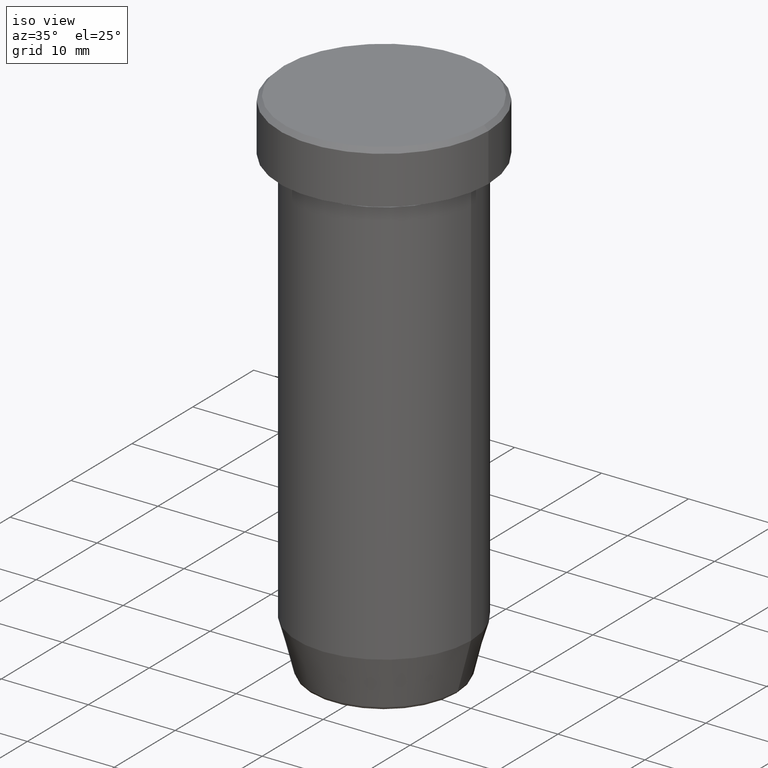
[diagram: clean part render]
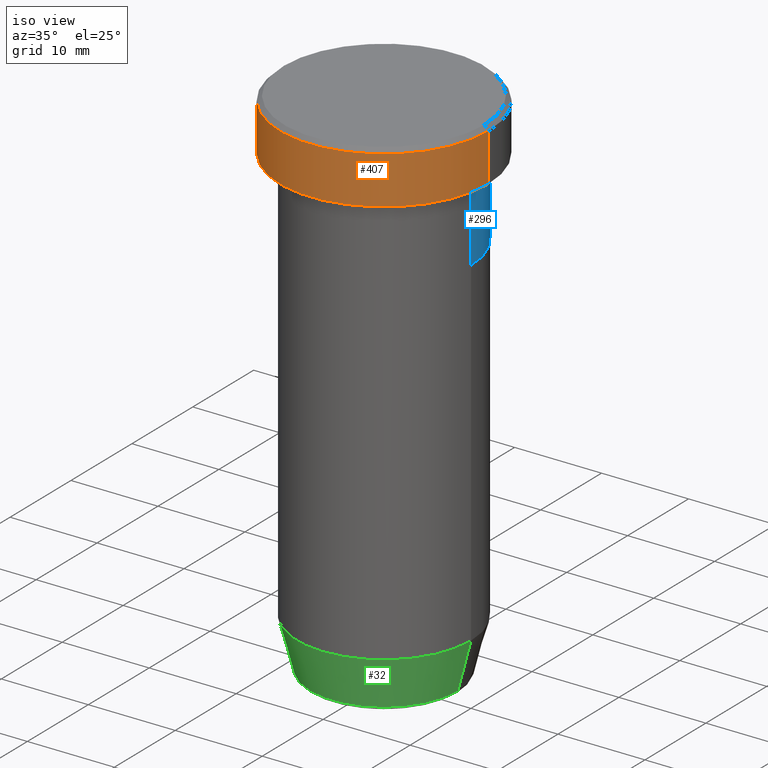
[diagram: same view with three faces highlighted in distinct colors, each labeled with its STEP entity id]
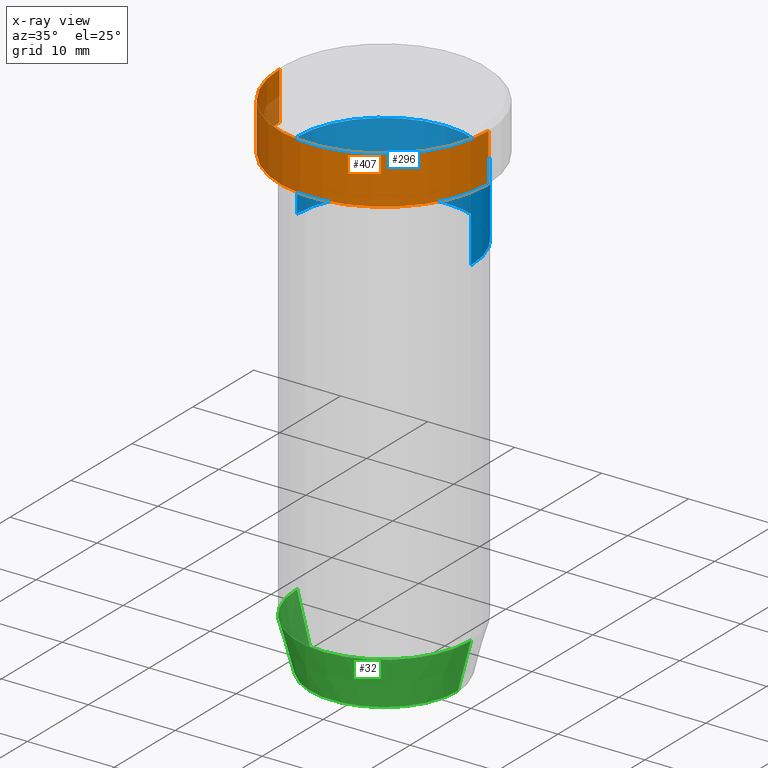
[diagram: x-ray of the same camera — body ghosted, the three highlighted faces saturated]
A machine part, iso view with three faces highlighted in distinct colors.
The next image is the same camera in x-ray (body ghosted, the three faces saturated) — at least one of them is partly hidden behind the body in this view.
Their STEP definitions:

[orange] entity #407 — the highlighted cylindrical surface (partial cylindrical patch) has radius 12 mm, axis along (-0, -0, 1).
#16 = CIRCLE ( 'NONE', #301, 12.00000000000000000 ) ;
#21 = ORIENTED_EDGE ( 'NONE', *, *, #281, .T. ) ;
#23 = ORIENTED_EDGE ( 'NONE', *, *, #138, .T. ) ;
#44 = CIRCLE ( 'NONE', #217, 12.00000000000000000 ) ;
#66 = DIRECTION ( 'NONE',  ( -0.000000000000000000, -0.000000000000000000, 1.000000000000000000 ) ) ;
#92 = DIRECTION ( 'NONE',  ( 1.000000000000000000, 0.000000000000000000, 0.000000000000000000 ) ) ;
#106 = FACE_OUTER_BOUND ( 'NONE', #595, .T. ) ;
#115 = VERTEX_POINT ( 'NONE', #263 ) ;
#138 = EDGE_CURVE ( 'NONE', #115, #331, #16, .T. ) ;
#143 = EDGE_CURVE ( 'NONE', #576, #115, #499, .T. ) ;
#145 = LINE ( 'NONE', #378, #516 ) ;
#153 = DIRECTION ( 'NONE',  ( 1.000000000000000000, 0.000000000000000000, 0.000000000000000000 ) ) ;
#217 = AXIS2_PLACEMENT_3D ( 'NONE', #248, #387, #568 ) ;
#229 = VERTEX_POINT ( 'NONE', #458 ) ;
#234 = EDGE_CURVE ( 'NONE', #229, #331, #145, .T. ) ;
#247 = ORIENTED_EDGE ( 'NONE', *, *, #143, .T. ) ;
#248 = CARTESIAN_POINT ( 'NONE',  ( 0.000000000000000000, 0.000000000000000000, -5.999999999999999112 ) ) ;
#263 = CARTESIAN_POINT ( 'NONE',  ( 12.00000000000000000, 0.000000000000000000, -0.5000000000000091038 ) ) ;
#281 = EDGE_CURVE ( 'NONE', #229, #576, #44, .T. ) ;
#301 = AXIS2_PLACEMENT_3D ( 'NONE', #581, #404, #92 ) ;
#331 = VERTEX_POINT ( 'NONE', #574 ) ;
#364 = VECTOR ( 'NONE', #449, 1000.000000000000000 ) ;
#371 = DIRECTION ( 'NONE',  ( -0.000000000000000000, -0.000000000000000000, 1.000000000000000000 ) ) ;
#378 = CARTESIAN_POINT ( 'NONE',  ( -12.00000000000000000, 1.469576158976823947E-15, 0.000000000000000000 ) ) ;
#387 = DIRECTION ( 'NONE',  ( -0.000000000000000000, -0.000000000000000000, 1.000000000000000000 ) ) ;
#404 = DIRECTION ( 'NONE',  ( 0.000000000000000000, 0.000000000000000000, -1.000000000000000000 ) ) ;
#405 = ORIENTED_EDGE ( 'NONE', *, *, #234, .F. ) ;
#407 = ADVANCED_FACE ( 'NONE', ( #106 ), #592, .T. ) ;
#409 = AXIS2_PLACEMENT_3D ( 'NONE', #468, #66, #153 ) ;
#447 = CARTESIAN_POINT ( 'NONE',  ( 12.00000000000000000, 0.000000000000000000, -5.999999999999999112 ) ) ;
#449 = DIRECTION ( 'NONE',  ( -0.000000000000000000, -0.000000000000000000, 1.000000000000000000 ) ) ;
#458 = CARTESIAN_POINT ( 'NONE',  ( -12.00000000000000000, 1.469576158976823947E-15, -5.999999999999999112 ) ) ;
#468 = CARTESIAN_POINT ( 'NONE',  ( 0.000000000000000000, 0.000000000000000000, 0.000000000000000000 ) ) ;
#499 = LINE ( 'NONE', #593, #364 ) ;
#516 = VECTOR ( 'NONE', #371, 1000.000000000000000 ) ;
#568 = DIRECTION ( 'NONE',  ( 1.000000000000000000, 0.000000000000000000, 0.000000000000000000 ) ) ;
#574 = CARTESIAN_POINT ( 'NONE',  ( -12.00000000000000000, 1.469576158976823947E-15, -0.5000000000000091038 ) ) ;
#576 = VERTEX_POINT ( 'NONE', #447 ) ;
#581 = CARTESIAN_POINT ( 'NONE',  ( 0.000000000000000000, 0.000000000000000000, -0.5000000000000091038 ) ) ;
#592 = CYLINDRICAL_SURFACE ( 'NONE', #409, 12.00000000000000000 ) ;
#593 = CARTESIAN_POINT ( 'NONE',  ( 12.00000000000000000, 0.000000000000000000, 0.000000000000000000 ) ) ;
#595 = EDGE_LOOP ( 'NONE', ( #405, #21, #247, #23 ) ) ;

[blue] entity #296 — the highlighted cylindrical surface (partial cylindrical patch) has radius 10 mm, axis along (-0, -0, 1).
#7 = CARTESIAN_POINT ( 'NONE',  ( -10.00000000000000000, 1.224646799147353256E-15, 0.000000000000000000 ) ) ;
#29 = VERTEX_POINT ( 'NONE', #214 ) ;
#54 = CARTESIAN_POINT ( 'NONE',  ( 0.000000000000000000, 0.000000000000000000, -6.999999999999999112 ) ) ;
#55 = ORIENTED_EDGE ( 'NONE', *, *, #83, .F. ) ;
#57 = DIRECTION ( 'NONE',  ( 1.000000000000000000, 0.000000000000000000, 0.000000000000000000 ) ) ;
#59 = CARTESIAN_POINT ( 'NONE',  ( 10.00000000000000000, 0.000000000000000000, -15.00000000000000000 ) ) ;
#78 = FACE_OUTER_BOUND ( 'NONE', #373, .T. ) ;
#79 = EDGE_CURVE ( 'NONE', #134, #29, #194, .T. ) ;
#83 = EDGE_CURVE ( 'NONE', #204, #134, #400, .T. ) ;
#100 = DIRECTION ( 'NONE',  ( 1.000000000000000000, 0.000000000000000000, 0.000000000000000000 ) ) ;
#105 = CIRCLE ( 'NONE', #492, 10.00000000000000000 ) ;
#124 = ORIENTED_EDGE ( 'NONE', *, *, #403, .T. ) ;
#134 = VERTEX_POINT ( 'NONE', #171 ) ;
#149 = DIRECTION ( 'NONE',  ( -0.000000000000000000, -0.000000000000000000, 1.000000000000000000 ) ) ;
#157 = ORIENTED_EDGE ( 'NONE', *, *, #79, .F. ) ;
#171 = CARTESIAN_POINT ( 'NONE',  ( 10.00000000000000000, 0.000000000000000000, -6.999999999999999112 ) ) ;
#194 = CIRCLE ( 'NONE', #264, 10.00000000000000000 ) ;
#204 = VERTEX_POINT ( 'NONE', #59 ) ;
#207 = EDGE_CURVE ( 'NONE', #338, #29, #413, .T. ) ;
#214 = CARTESIAN_POINT ( 'NONE',  ( -10.00000000000000000, 1.224646799147353256E-15, -6.999999999999999112 ) ) ;
#237 = VECTOR ( 'NONE', #258, 1000.000000000000000 ) ;
#242 = CYLINDRICAL_SURFACE ( 'NONE', #340, 10.00000000000000000 ) ;
#258 = DIRECTION ( 'NONE',  ( -0.000000000000000000, -0.000000000000000000, 1.000000000000000000 ) ) ;
#264 = AXIS2_PLACEMENT_3D ( 'NONE', #54, #302, #100 ) ;
#296 = ADVANCED_FACE ( 'NONE', ( #78 ), #242, .T. ) ;
#302 = DIRECTION ( 'NONE',  ( -0.000000000000000000, -0.000000000000000000, 1.000000000000000000 ) ) ;
#337 = CARTESIAN_POINT ( 'NONE',  ( -10.00000000000000000, 1.224646799147353256E-15, -15.00000000000000000 ) ) ;
#338 = VERTEX_POINT ( 'NONE', #337 ) ;
#340 = AXIS2_PLACEMENT_3D ( 'NONE', #437, #577, #520 ) ;
#373 = EDGE_LOOP ( 'NONE', ( #124, #386, #157, #55 ) ) ;
#386 = ORIENTED_EDGE ( 'NONE', *, *, #207, .T. ) ;
#400 = LINE ( 'NONE', #496, #237 ) ;
#403 = EDGE_CURVE ( 'NONE', #204, #338, #105, .T. ) ;
#413 = LINE ( 'NONE', #7, #464 ) ;
#437 = CARTESIAN_POINT ( 'NONE',  ( 0.000000000000000000, 0.000000000000000000, 0.000000000000000000 ) ) ;
#464 = VECTOR ( 'NONE', #466, 1000.000000000000000 ) ;
#466 = DIRECTION ( 'NONE',  ( -0.000000000000000000, -0.000000000000000000, 1.000000000000000000 ) ) ;
#492 = AXIS2_PLACEMENT_3D ( 'NONE', #551, #149, #57 ) ;
#496 = CARTESIAN_POINT ( 'NONE',  ( 10.00000000000000000, 0.000000000000000000, 0.000000000000000000 ) ) ;
#520 = DIRECTION ( 'NONE',  ( 1.000000000000000000, 0.000000000000000000, 0.000000000000000000 ) ) ;
#551 = CARTESIAN_POINT ( 'NONE',  ( 0.000000000000000000, 0.000000000000000000, -15.00000000000000000 ) ) ;
#577 = DIRECTION ( 'NONE',  ( -0.000000000000000000, -0.000000000000000000, 1.000000000000000000 ) ) ;

[green] entity #32 — the highlighted conical surface has half-angle 15 deg.
#1 = DIRECTION ( 'NONE',  ( -1.000000000000000000, 0.000000000000000000, 0.000000000000000000 ) ) ;
#9 = DIRECTION ( 'NONE',  ( -0.000000000000000000, -0.000000000000000000, 1.000000000000000000 ) ) ;
#25 = ORIENTED_EDGE ( 'NONE', *, *, #199, .T. ) ;
#32 = ADVANCED_FACE ( 'NONE', ( #166 ), #313, .T. ) ;
#52 = DIRECTION ( 'NONE',  ( -0.000000000000000000, -0.000000000000000000, 1.000000000000000000 ) ) ;
#58 = CIRCLE ( 'NONE', #283, 9.999999999999998224 ) ;
#69 = CARTESIAN_POINT ( 'NONE',  ( 0.000000000000000000, 0.000000000000000000, -53.99999999999999289 ) ) ;
#81 = CARTESIAN_POINT ( 'NONE',  ( 8.392304845413260495, 0.000000000000000000, -60.00000000000000000 ) ) ;
#82 = CARTESIAN_POINT ( 'NONE',  ( 8.491604264568310967, 0.000000000000000000, -59.62940952255125637 ) ) ;
#85 = CARTESIAN_POINT ( 'NONE',  ( 0.000000000000000000, 0.000000000000000000, -60.00000000000000000 ) ) ;
#126 = CARTESIAN_POINT ( 'NONE',  ( -8.491604264568310967, 1.132284198685156387E-15, -59.62940952255125637 ) ) ;
#166 = FACE_OUTER_BOUND ( 'NONE', #334, .T. ) ;
#184 = AXIS2_PLACEMENT_3D ( 'NONE', #85, #430, #529 ) ;
#185 = CIRCLE ( 'NONE', #246, 8.491604264568310967 ) ;
#199 = EDGE_CURVE ( 'NONE', #560, #289, #185, .T. ) ;
#210 = ORIENTED_EDGE ( 'NONE', *, *, #451, .F. ) ;
#227 = VECTOR ( 'NONE', #408, 1000.000000000000000 ) ;
#243 = EDGE_CURVE ( 'NONE', #560, #536, #469, .T. ) ;
#246 = AXIS2_PLACEMENT_3D ( 'NONE', #475, #9, #1 ) ;
#279 = CARTESIAN_POINT ( 'NONE',  ( -8.392304845413260495, 1.027760926640417114E-15, -60.00000000000000000 ) ) ;
#283 = AXIS2_PLACEMENT_3D ( 'NONE', #69, #52, #406 ) ;
#289 = VERTEX_POINT ( 'NONE', #82 ) ;
#311 = VECTOR ( 'NONE', #425, 1000.000000000000000 ) ;
#313 = CONICAL_SURFACE ( 'NONE', #184, 8.392304845413260495, 0.2617993877991495744 ) ;
#334 = EDGE_LOOP ( 'NONE', ( #424, #25, #489, #210 ) ) ;
#384 = CARTESIAN_POINT ( 'NONE',  ( 9.999999999999998224, 0.000000000000000000, -53.99999999999999289 ) ) ;
#406 = DIRECTION ( 'NONE',  ( 1.000000000000000000, 0.000000000000000000, 0.000000000000000000 ) ) ;
#408 = DIRECTION ( 'NONE',  ( -0.2588190451025209060, 3.169619151431766790E-17, 0.9659258262890682012 ) ) ;
#424 = ORIENTED_EDGE ( 'NONE', *, *, #243, .F. ) ;
#425 = DIRECTION ( 'NONE',  ( 0.2588190451025209060, 0.000000000000000000, 0.9659258262890682012 ) ) ;
#430 = DIRECTION ( 'NONE',  ( -0.000000000000000000, -0.000000000000000000, 1.000000000000000000 ) ) ;
#443 = CARTESIAN_POINT ( 'NONE',  ( -9.999999999999998224, 1.224646799147353059E-15, -53.99999999999999289 ) ) ;
#451 = EDGE_CURVE ( 'NONE', #536, #482, #58, .T. ) ;
#469 = LINE ( 'NONE', #279, #227 ) ;
#475 = CARTESIAN_POINT ( 'NONE',  ( 0.000000000000000000, 0.000000000000000000, -59.62940952255125637 ) ) ;
#482 = VERTEX_POINT ( 'NONE', #384 ) ;
#486 = LINE ( 'NONE', #81, #311 ) ;
#489 = ORIENTED_EDGE ( 'NONE', *, *, #522, .T. ) ;
#522 = EDGE_CURVE ( 'NONE', #289, #482, #486, .T. ) ;
#529 = DIRECTION ( 'NONE',  ( 1.000000000000000000, 0.000000000000000000, 0.000000000000000000 ) ) ;
#536 = VERTEX_POINT ( 'NONE', #443 ) ;
#560 = VERTEX_POINT ( 'NONE', #126 ) ;